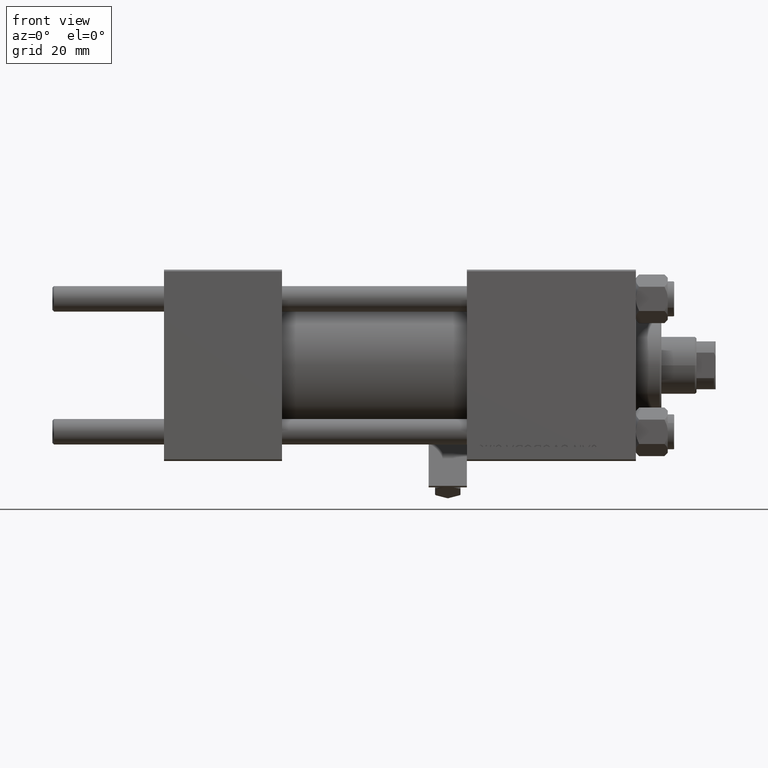
[diagram: clean part render]
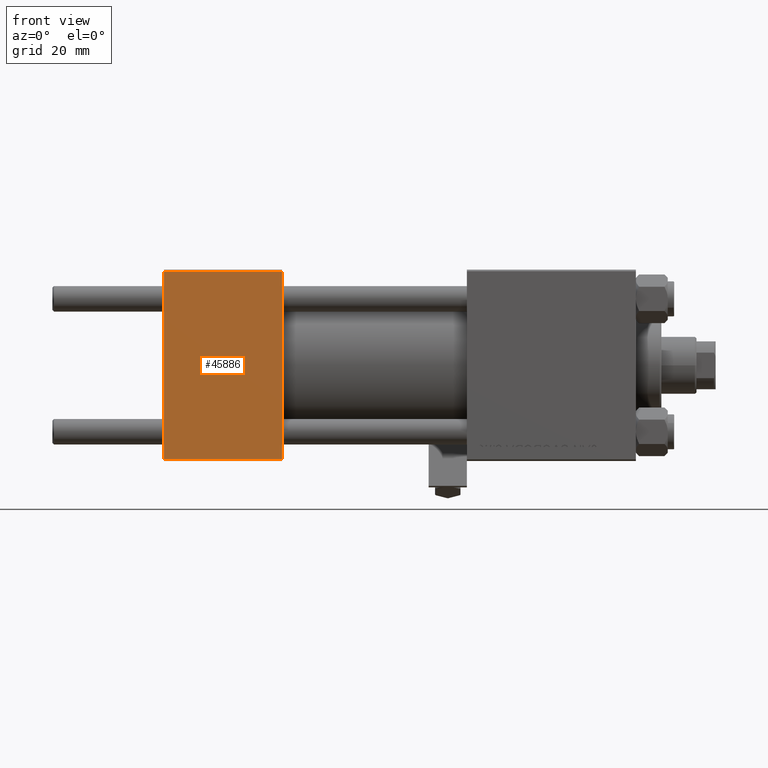
[diagram: same view with one face highlighted and labeled with its STEP entity id]
A machine part, front view. The second image highlights one B-rep face of the part: STEP entity #45886.
In plain terms, the highlighted planar face has unit normal (0, 1, 0).
Its self-contained STEP definition (entity closure, byte-faithful):
#6403 = ORIENTED_EDGE ( 'NONE', *, *, #15466, .T. ) ;
#6506 = CARTESIAN_POINT ( 'NONE',  ( 37.00000000000000000, -30.00000000000000000, 29.49999999999999289 ) ) ;
#6837 = VECTOR ( 'NONE', #14253, 1000.000000000000000 ) ;
#7590 = ORIENTED_EDGE ( 'NONE', *, *, #32150, .T. ) ;
#9567 = VECTOR ( 'NONE', #33735, 1000.000000000000000 ) ;
#10133 = LINE ( 'NONE', #38423, #6837 ) ;
#10626 = AXIS2_PLACEMENT_3D ( 'NONE', #45671, #41815, #44636 ) ;
#10811 = CARTESIAN_POINT ( 'NONE',  ( 0.000000000000000000, -30.00000000000000000, -29.50000000000001776 ) ) ;
#12018 = FACE_OUTER_BOUND ( 'NONE', #33661, .T. ) ;
#13413 = VERTEX_POINT ( 'NONE', #22140 ) ;
#13490 = DIRECTION ( 'NONE',  ( 0.000000000000000000, 0.000000000000000000, -1.000000000000000000 ) ) ;
#13959 = ORIENTED_EDGE ( 'NONE', *, *, #19999, .T. ) ;
#14253 = DIRECTION ( 'NONE',  ( 1.000000000000000000, 0.000000000000000000, 0.000000000000000000 ) ) ;
#14998 = LINE ( 'NONE', #6506, #46265 ) ;
#15466 = EDGE_CURVE ( 'NONE', #30259, #13413, #10133, .T. ) ;
#17163 = VERTEX_POINT ( 'NONE', #27545 ) ;
#17636 = PLANE ( 'NONE',  #10626 ) ;
#17654 = VECTOR ( 'NONE', #13490, 1000.000000000000000 ) ;
#19999 = EDGE_CURVE ( 'NONE', #45799, #17163, #14998, .T. ) ;
#21889 = LINE ( 'NONE', #30638, #9567 ) ;
#22140 = CARTESIAN_POINT ( 'NONE',  ( 37.00000000000000000, -30.00000000000000000, -29.50000000000001776 ) ) ;
#24487 = EDGE_CURVE ( 'NONE', #45799, #13413, #25577, .T. ) ;
#25577 = LINE ( 'NONE', #28677, #17654 ) ;
#27545 = CARTESIAN_POINT ( 'NONE',  ( 0.000000000000000000, -30.00000000000000000, 29.49999999999999289 ) ) ;
#28677 = CARTESIAN_POINT ( 'NONE',  ( 37.00000000000000000, -30.00000000000000000, 29.99999999999999289 ) ) ;
#28709 = CARTESIAN_POINT ( 'NONE',  ( 37.00000000000000000, -30.00000000000000000, 29.49999999999999289 ) ) ;
#30259 = VERTEX_POINT ( 'NONE', #10811 ) ;
#30638 = CARTESIAN_POINT ( 'NONE',  ( 0.000000000000000000, -30.00000000000000000, 29.99999999999999289 ) ) ;
#30686 = DIRECTION ( 'NONE',  ( -1.000000000000000000, 0.000000000000000000, 0.000000000000000000 ) ) ;
#32150 = EDGE_CURVE ( 'NONE', #17163, #30259, #21889, .T. ) ;
#33661 = EDGE_LOOP ( 'NONE', ( #7590, #6403, #45311, #13959 ) ) ;
#33735 = DIRECTION ( 'NONE',  ( 0.000000000000000000, 0.000000000000000000, -1.000000000000000000 ) ) ;
#38423 = CARTESIAN_POINT ( 'NONE',  ( 37.00000000000000000, -30.00000000000000000, -29.50000000000001776 ) ) ;
#41815 = DIRECTION ( 'NONE',  ( -0.000000000000000000, 1.000000000000000000, 0.000000000000000000 ) ) ;
#44636 = DIRECTION ( 'NONE',  ( 0.000000000000000000, -0.000000000000000000, 1.000000000000000000 ) ) ;
#45311 = ORIENTED_EDGE ( 'NONE', *, *, #24487, .F. ) ;
#45671 = CARTESIAN_POINT ( 'NONE',  ( 37.00000000000000000, -30.00000000000000000, 29.99999999999999289 ) ) ;
#45799 = VERTEX_POINT ( 'NONE', #28709 ) ;
#45886 = ADVANCED_FACE ( 'NONE', ( #12018 ), #17636, .F. ) ;
#46265 = VECTOR ( 'NONE', #30686, 1000.000000000000000 ) ;